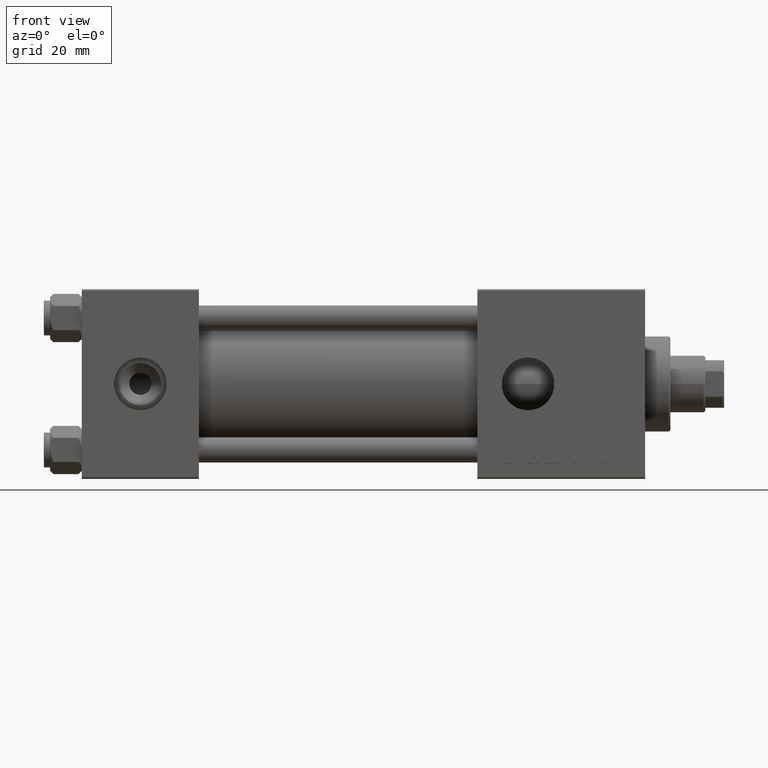
[diagram: clean part render]
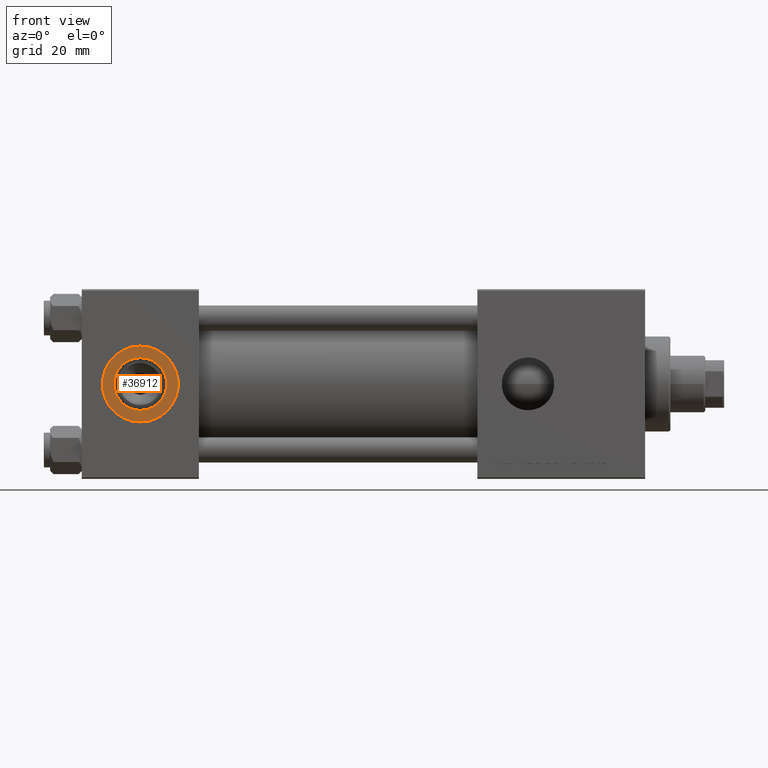
[diagram: same view with one face highlighted and labeled with its STEP entity id]
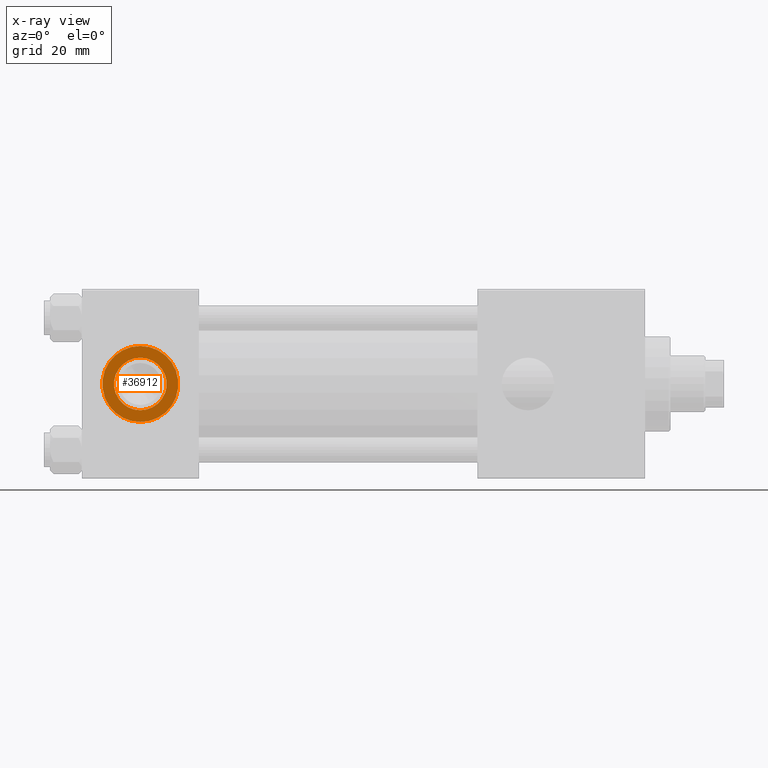
[diagram: x-ray of the same camera — body ghosted, the highlighted face saturated]
A machine part, front view. The second image highlights one B-rep face of the part: STEP entity #36912.
The next image is the same camera in x-ray: the body ghosted, the highlighted face saturated — about 0% of this face is hidden behind the body in this view.
In plain terms, the highlighted planar face has unit normal (0, -1, -0).
Its self-contained STEP definition (entity closure, byte-faithful):
#738 = EDGE_LOOP ( 'NONE', ( #33064, #47894 ) ) ;
#1476 = VERTEX_POINT ( 'NONE', #49731 ) ;
#2112 = EDGE_CURVE ( 'NONE', #12095, #6962, #43822, .T. ) ;
#2667 = CARTESIAN_POINT ( 'NONE',  ( 18.50000000000000000, -29.80000000000000071, 1.734723475976807403E-17 ) ) ;
#6962 = VERTEX_POINT ( 'NONE', #20661 ) ;
#7177 = ORIENTED_EDGE ( 'NONE', *, *, #40970, .F. ) ;
#8340 = PLANE ( 'NONE',  #14166 ) ;
#9440 = AXIS2_PLACEMENT_3D ( 'NONE', #15101, #30560, #46065 ) ;
#10539 = DIRECTION ( 'NONE',  ( 0.000000000000000000, -1.000000000000000000, -8.673617379884036705E-17 ) ) ;
#11896 = FACE_OUTER_BOUND ( 'NONE', #738, .T. ) ;
#12095 = VERTEX_POINT ( 'NONE', #31786 ) ;
#12151 = FACE_BOUND ( 'NONE', #36994, .T. ) ;
#14166 = AXIS2_PLACEMENT_3D ( 'NONE', #15214, #42374, #39300 ) ;
#14208 = DIRECTION ( 'NONE',  ( 0.000000000000000000, -1.000000000000000000, -8.673617379884036705E-17 ) ) ;
#15101 = CARTESIAN_POINT ( 'NONE',  ( 18.50000000000000000, -29.80000000000000071, 1.734723475976808635E-17 ) ) ;
#15214 = CARTESIAN_POINT ( 'NONE',  ( 18.50000000000000000, -29.80000000000000071, 1.734723475976807403E-17 ) ) ;
#18775 = CARTESIAN_POINT ( 'NONE',  ( 18.50000000000000000, -29.80000000000000071, 1.734723475976807403E-17 ) ) ;
#19513 = AXIS2_PLACEMENT_3D ( 'NONE', #34868, #42256, #46315 ) ;
#20021 = CARTESIAN_POINT ( 'NONE',  ( 18.50000000000000000, -29.80000000000000071, 12.00000000000000178 ) ) ;
#20661 = CARTESIAN_POINT ( 'NONE',  ( 18.50000000000000000, -29.80000000000000071, -8.330000000000001847 ) ) ;
#26464 = ORIENTED_EDGE ( 'NONE', *, *, #2112, .F. ) ;
#26861 = EDGE_CURVE ( 'NONE', #36930, #1476, #49640, .T. ) ;
#30560 = DIRECTION ( 'NONE',  ( 0.000000000000000000, -1.000000000000000000, -8.673617379884036705E-17 ) ) ;
#30632 = EDGE_CURVE ( 'NONE', #1476, #36930, #46524, .T. ) ;
#31786 = CARTESIAN_POINT ( 'NONE',  ( 18.50000000000000000, -29.80000000000000071, 8.330000000000001847 ) ) ;
#32696 = AXIS2_PLACEMENT_3D ( 'NONE', #2667, #10539, #37450 ) ;
#33064 = ORIENTED_EDGE ( 'NONE', *, *, #30632, .T. ) ;
#34868 = CARTESIAN_POINT ( 'NONE',  ( 18.50000000000000000, -29.80000000000000071, 1.734723475976808635E-17 ) ) ;
#36664 = AXIS2_PLACEMENT_3D ( 'NONE', #18775, #14208, #38046 ) ;
#36912 = ADVANCED_FACE ( 'NONE', ( #12151, #11896 ), #8340, .T. ) ;
#36930 = VERTEX_POINT ( 'NONE', #20021 ) ;
#36994 = EDGE_LOOP ( 'NONE', ( #7177, #26464 ) ) ;
#37019 = CIRCLE ( 'NONE', #9440, 8.330000000000001847 ) ;
#37450 = DIRECTION ( 'NONE',  ( 0.000000000000000000, 0.000000000000000000, -1.000000000000000000 ) ) ;
#38046 = DIRECTION ( 'NONE',  ( 0.000000000000000000, 0.000000000000000000, -1.000000000000000000 ) ) ;
#39300 = DIRECTION ( 'NONE',  ( 0.000000000000000000, 8.673617379884036705E-17, -1.000000000000000000 ) ) ;
#40970 = EDGE_CURVE ( 'NONE', #6962, #12095, #37019, .T. ) ;
#42256 = DIRECTION ( 'NONE',  ( 0.000000000000000000, -1.000000000000000000, -8.673617379884036705E-17 ) ) ;
#42374 = DIRECTION ( 'NONE',  ( 0.000000000000000000, -1.000000000000000000, -8.673617379884036705E-17 ) ) ;
#43822 = CIRCLE ( 'NONE', #19513, 8.330000000000001847 ) ;
#46065 = DIRECTION ( 'NONE',  ( 0.000000000000000000, 0.000000000000000000, -1.000000000000000000 ) ) ;
#46315 = DIRECTION ( 'NONE',  ( 0.000000000000000000, 0.000000000000000000, -1.000000000000000000 ) ) ;
#46524 = CIRCLE ( 'NONE', #32696, 12.00000000000000178 ) ;
#47894 = ORIENTED_EDGE ( 'NONE', *, *, #26861, .T. ) ;
#49640 = CIRCLE ( 'NONE', #36664, 12.00000000000000178 ) ;
#49731 = CARTESIAN_POINT ( 'NONE',  ( 18.50000000000000000, -29.80000000000000071, -12.00000000000000178 ) ) ;